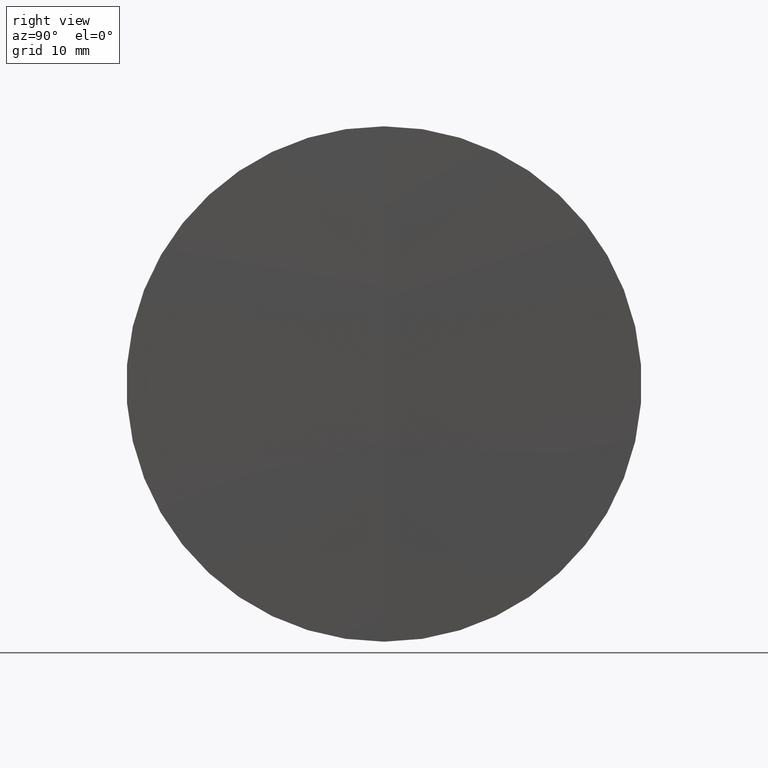
[diagram: clean part render]
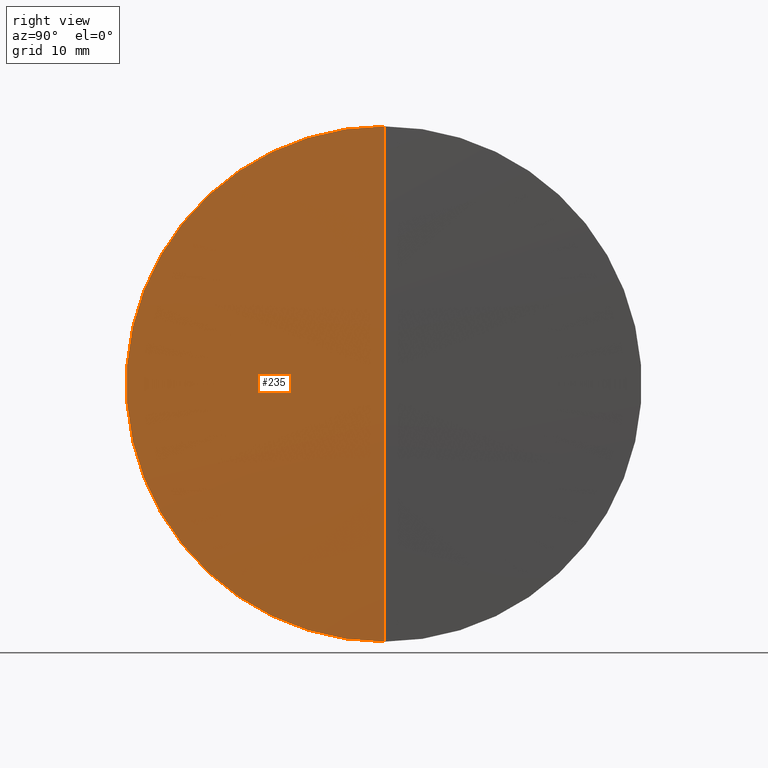
[diagram: same view with one face highlighted and labeled with its STEP entity id]
A machine part, right view. The second image highlights one B-rep face of the part: STEP entity #235.
In plain terms, the highlighted spherical surface has radius 1132.4 mm.
Its self-contained STEP definition (entity closure, byte-faithful):
#2 = CARTESIAN_POINT ( 'NONE',  ( -412.6194407256770100, 0.0000000000000000000, 0.0000000000000000000 ) ) ;
#8 = CARTESIAN_POINT ( 'NONE',  ( 719.7805592743228500, 0.0000000000000000000, 6.933950176772312400E-014 ) ) ;
#13 = VERTEX_POINT ( 'NONE', #8 ) ;
#31 = DIRECTION ( 'NONE',  ( 0.0000000000000000000, 0.0000000000000000000, 1.000000000000000000 ) ) ;
#33 = DIRECTION ( 'NONE',  ( 0.0000000000000000000, -1.000000000000000000, 0.0000000000000000000 ) ) ;
#36 = ORIENTED_EDGE ( 'NONE', *, *, #179, .F. ) ;
#46 = SPHERICAL_SURFACE ( 'NONE', #239, 1132.399999999999900 ) ;
#75 = VERTEX_POINT ( 'NONE', #302 ) ;
#79 = VERTEX_POINT ( 'NONE', #218 ) ;
#81 = AXIS2_PLACEMENT_3D ( 'NONE', #94, #33, #228 ) ;
#94 = CARTESIAN_POINT ( 'NONE',  ( -412.6194407256770100, 0.0000000000000000000, 0.0000000000000000000 ) ) ;
#108 = DIRECTION ( 'NONE',  ( 0.0000000000000000000, 1.000000000000000000, 0.0000000000000000000 ) ) ;
#109 = DIRECTION ( 'NONE',  ( -1.000000000000000000, -0.0000000000000000000, -0.0000000000000000000 ) ) ;
#124 = ORIENTED_EDGE ( 'NONE', *, *, #186, .T. ) ;
#129 = DIRECTION ( 'NONE',  ( 0.0000000000000000000, 0.0000000000000000000, 1.000000000000000000 ) ) ;
#138 = AXIS2_PLACEMENT_3D ( 'NONE', #298, #109, #31 ) ;
#171 = DIRECTION ( 'NONE',  ( -0.0000000000000000000, 1.000000000000000000, 1.224646799147353200E-016 ) ) ;
#179 = EDGE_CURVE ( 'NONE', #79, #75, #281, .T. ) ;
#186 = EDGE_CURVE ( 'NONE', #13, #75, #329, .T. ) ;
#218 = CARTESIAN_POINT ( 'NONE',  ( 719.4956594297797200, 3.110602869834256700E-015, -25.39999999999975700 ) ) ;
#227 = EDGE_CURVE ( 'NONE', #13, #79, #340, .T. ) ;
#228 = DIRECTION ( 'NONE',  ( 0.0000000000000000000, 0.0000000000000000000, -1.000000000000000000 ) ) ;
#235 = ADVANCED_FACE ( 'NONE', ( #307 ), #46, .T. ) ;
#239 = AXIS2_PLACEMENT_3D ( 'NONE', #2, #108, #129 ) ;
#240 = EDGE_LOOP ( 'NONE', ( #299, #124, #36 ) ) ;
#241 = CARTESIAN_POINT ( 'NONE',  ( -412.6194407256770100, 0.0000000000000000000, 0.0000000000000000000 ) ) ;
#281 = CIRCLE ( 'NONE', #138, 25.39999999999975700 ) ;
#294 = AXIS2_PLACEMENT_3D ( 'NONE', #241, #171, #301 ) ;
#298 = CARTESIAN_POINT ( 'NONE',  ( 719.4956594297797200, 0.0000000000000000000, 0.0000000000000000000 ) ) ;
#299 = ORIENTED_EDGE ( 'NONE', *, *, #227, .F. ) ;
#301 = DIRECTION ( 'NONE',  ( 0.0000000000000000000, -1.224646799147353200E-016, 1.000000000000000000 ) ) ;
#302 = CARTESIAN_POINT ( 'NONE',  ( 719.4956594297797200, 0.0000000000000000000, 25.39999999999975700 ) ) ;
#307 = FACE_OUTER_BOUND ( 'NONE', #240, .T. ) ;
#329 = CIRCLE ( 'NONE', #81, 1132.399999999999900 ) ;
#340 = CIRCLE ( 'NONE', #294, 1132.399999999999900 ) ;